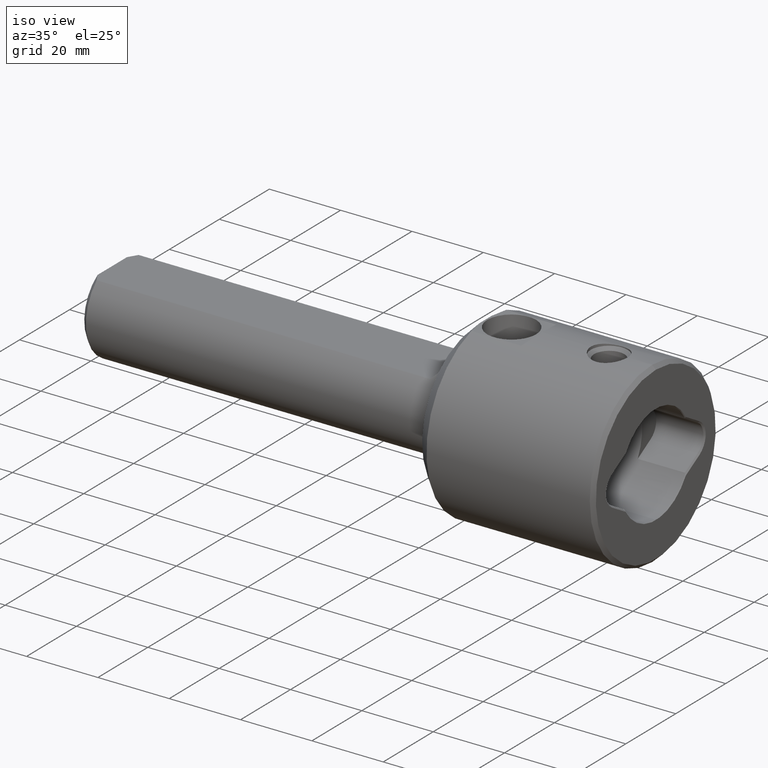
[diagram: clean part render]
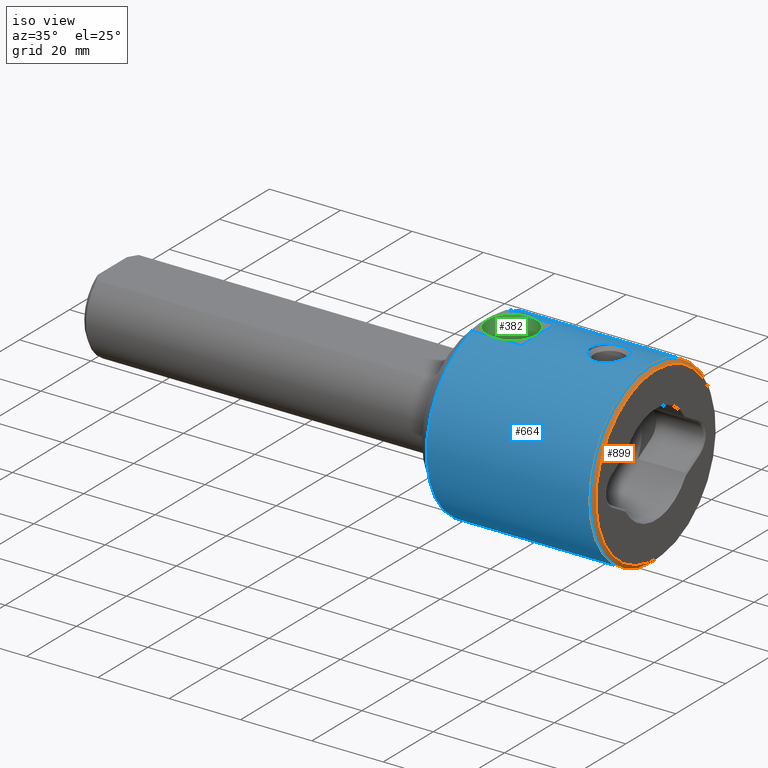
[diagram: same view with three faces highlighted in distinct colors, each labeled with its STEP entity id]
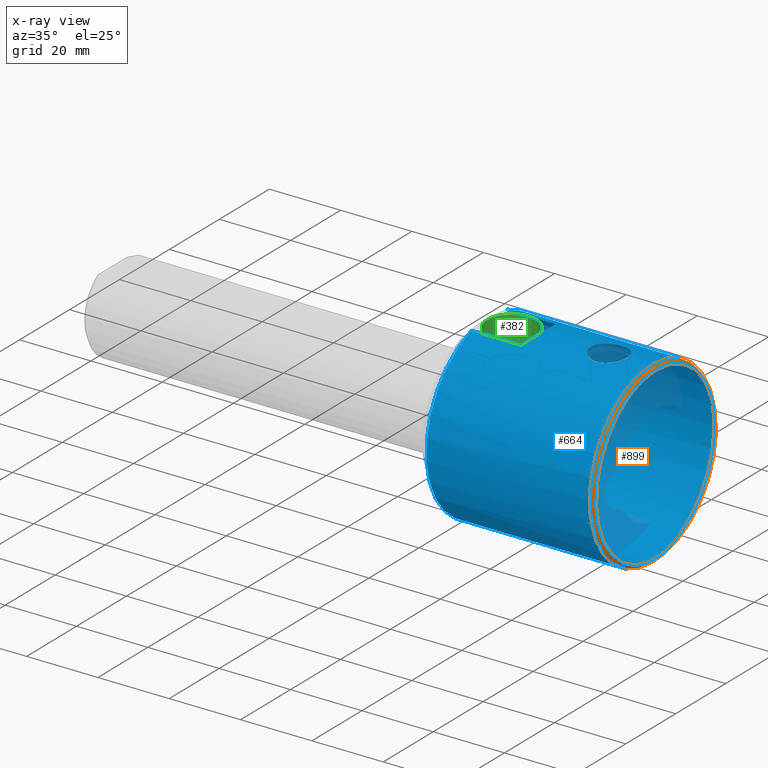
[diagram: x-ray of the same camera — body ghosted, the three highlighted faces saturated]
A machine part, iso view with three faces highlighted in distinct colors.
The next image is the same camera in x-ray (body ghosted, the three faces saturated) — at least one of them is partly hidden behind the body in this view.
Their STEP definitions:

[orange] entity #899 — the highlighted conical surface has half-angle 45 deg.
#67 = EDGE_CURVE ( 'NONE', #1527, #1527, #343, .T. ) ;
#141 = DIRECTION ( 'NONE',  ( -1.000000000000000000, -0.0000000000000000000, -0.0000000000000000000 ) ) ;
#146 = DIRECTION ( 'NONE',  ( 0.0000000000000000000, 0.0000000000000000000, 1.000000000000000000 ) ) ;
#159 = CONICAL_SURFACE ( 'NONE', #1102, 24.00000000000000355, 0.7853981633974466137 ) ;
#160 = ORIENTED_EDGE ( 'NONE', *, *, #715, .T. ) ;
#189 = DIRECTION ( 'NONE',  ( -1.000000000000000000, -0.0000000000000000000, -0.0000000000000000000 ) ) ;
#200 = ORIENTED_EDGE ( 'NONE', *, *, #67, .F. ) ;
#343 = CIRCLE ( 'NONE', #1292, 25.00000000000000000 ) ;
#385 = CARTESIAN_POINT ( 'NONE',  ( 151.4000000000000057, 0.0000000000000000000, 0.0000000000000000000 ) ) ;
#470 = CARTESIAN_POINT ( 'NONE',  ( 152.4000000000000057, 0.0000000000000000000, 24.00000000000000355 ) ) ;
#567 = AXIS2_PLACEMENT_3D ( 'NONE', #827, #189, #1437 ) ;
#698 = DIRECTION ( 'NONE',  ( 0.0000000000000000000, 0.0000000000000000000, 1.000000000000000000 ) ) ;
#715 = EDGE_CURVE ( 'NONE', #793, #793, #1566, .T. ) ;
#747 = CARTESIAN_POINT ( 'NONE',  ( 151.4000000000000057, 0.0000000000000000000, 25.00000000000000000 ) ) ;
#793 = VERTEX_POINT ( 'NONE', #470 ) ;
#827 = CARTESIAN_POINT ( 'NONE',  ( 152.4000000000000057, 0.0000000000000000000, 0.0000000000000000000 ) ) ;
#831 = DIRECTION ( 'NONE',  ( -1.000000000000000000, -0.0000000000000000000, -0.0000000000000000000 ) ) ;
#899 = ADVANCED_FACE ( 'NONE', ( #1134, #1409 ), #159, .T. ) ;
#948 = CARTESIAN_POINT ( 'NONE',  ( 152.4000000000000057, 0.0000000000000000000, 0.0000000000000000000 ) ) ;
#1102 = AXIS2_PLACEMENT_3D ( 'NONE', #948, #831, #698 ) ;
#1134 = FACE_OUTER_BOUND ( 'NONE', #1137, .T. ) ;
#1137 = EDGE_LOOP ( 'NONE', ( #200 ) ) ;
#1292 = AXIS2_PLACEMENT_3D ( 'NONE', #385, #141, #146 ) ;
#1409 = FACE_BOUND ( 'NONE', #1424, .T. ) ;
#1424 = EDGE_LOOP ( 'NONE', ( #160 ) ) ;
#1437 = DIRECTION ( 'NONE',  ( 0.0000000000000000000, 0.0000000000000000000, 1.000000000000000000 ) ) ;
#1527 = VERTEX_POINT ( 'NONE', #747 ) ;
#1566 = CIRCLE ( 'NONE', #567, 24.00000000000000355 ) ;

[blue] entity #664 — the highlighted cylindrical surface (bore or boss wall) has radius 25 mm, axis along (-1, -0, -0).
#32 = CARTESIAN_POINT ( 'NONE',  ( 138.1744209528919214, 5.016843694288756872, 24.49147632104921968 ) ) ;
#51 = CARTESIAN_POINT ( 'NONE',  ( 105.5999999999999943, 7.000000000000007994, 24.00000000000000000 ) ) ;
#67 = EDGE_CURVE ( 'NONE', #1527, #1527, #343, .T. ) ;
#74 = EDGE_LOOP ( 'NONE', ( #897 ) ) ;
#80 = EDGE_LOOP ( 'NONE', ( #512, #933, #1064, #987 ) ) ;
#94 = AXIS2_PLACEMENT_3D ( 'NONE', #467, #95, #729 ) ;
#95 = DIRECTION ( 'NONE',  ( -1.000000000000000000, -0.0000000000000000000, -0.0000000000000000000 ) ) ;
#104 = CARTESIAN_POINT ( 'NONE',  ( 138.0127342719502792, -4.984762648035729882, 24.49809519138390357 ) ) ;
#122 = CARTESIAN_POINT ( 'NONE',  ( 134.4635384986788722, 1.660615311776426184, 24.94672547838542442 ) ) ;
#126 = CARTESIAN_POINT ( 'NONE',  ( 136.6272881825333911, -4.374629887585953725, 24.61445787250782402 ) ) ;
#141 = DIRECTION ( 'NONE',  ( -1.000000000000000000, -0.0000000000000000000, -0.0000000000000000000 ) ) ;
#146 = DIRECTION ( 'NONE',  ( 0.0000000000000000000, 0.0000000000000000000, 1.000000000000000000 ) ) ;
#161 = CARTESIAN_POINT ( 'NONE',  ( 139.6864957112755690, 5.150232192239320383, 24.46375090665605967 ) ) ;
#166 = CARTESIAN_POINT ( 'NONE',  ( 105.5999999999999943, -7.000000000000007994, 24.00000000000000000 ) ) ;
#168 = CARTESIAN_POINT ( 'NONE',  ( 143.9755986521840327, 2.288858401140157817, 24.89694052744941288 ) ) ;
#173 = FACE_OUTER_BOUND ( 'NONE', #80, .T. ) ;
#196 = ORIENTED_EDGE ( 'NONE', *, *, #549, .T. ) ;
#210 = CARTESIAN_POINT ( 'NONE',  ( 119.6000000000000085, -6.999999999999978684, 24.00000000000000000 ) ) ;
#229 = VERTEX_POINT ( 'NONE', #166 ) ;
#237 = CARTESIAN_POINT ( 'NONE',  ( 134.2340093705505808, -0.6805027755556970481, 24.99293188818355915 ) ) ;
#245 = CARTESIAN_POINT ( 'NONE',  ( 143.4447980209166076, -3.141368923499277876, 24.80344721123005058 ) ) ;
#252 = CARTESIAN_POINT ( 'NONE',  ( 134.3649872841935178, 1.337132994925204654, 24.96645022003189851 ) ) ;
#256 = CARTESIAN_POINT ( 'NONE',  ( 134.4644251093467631, -1.663480737790255182, 24.94654809993545541 ) ) ;
#262 = CARTESIAN_POINT ( 'NONE',  ( 134.3666046089705617, -1.342465837486754854, 24.96612733024693043 ) ) ;
#290 = CARTESIAN_POINT ( 'NONE',  ( 141.0101986160071874, 4.886676901801127570, 24.51810806839961288 ) ) ;
#301 = CARTESIAN_POINT ( 'NONE',  ( 137.6885104576335834, 4.877543030927827594, 24.51962657363405285 ) ) ;
#324 = CARTESIAN_POINT ( 'NONE',  ( 144.4664201266909629, 0.6779353896317417139, 24.99301934527566971 ) ) ;
#338 = DIRECTION ( 'NONE',  ( -1.000000000000000000, -0.0000000000000000000, -0.0000000000000000000 ) ) ;
#343 = CIRCLE ( 'NONE', #1292, 25.00000000000000000 ) ;
#360 = CARTESIAN_POINT ( 'NONE',  ( 144.2285560805525506, -1.658570658355216665, 24.94545014816634065 ) ) ;
#364 = CARTESIAN_POINT ( 'NONE',  ( 139.0162214856229070, -5.150200937444081362, 24.46375748625921531 ) ) ;
#367 = CARTESIAN_POINT ( 'NONE',  ( 144.4664263691056760, -0.6765423343778538268, 24.99302262802729047 ) ) ;
#375 = CARTESIAN_POINT ( 'NONE',  ( 134.7279945250559479, 2.277730767257620581, 24.89647203327958636 ) ) ;
#383 = CARTESIAN_POINT ( 'NONE',  ( 140.0246961502668626, -5.116864292001710446, 24.47084565253971888 ) ) ;
#385 = CARTESIAN_POINT ( 'NONE',  ( 151.4000000000000057, 0.0000000000000000000, 0.0000000000000000000 ) ) ;
#394 = FACE_OUTER_BOUND ( 'NONE', #74, .T. ) ;
#406 = CARTESIAN_POINT ( 'NONE',  ( 137.0591079203534548, 4.624809591675354881, 24.56885580689529647 ) ) ;
#412 = CARTESIAN_POINT ( 'NONE',  ( 141.6323252803253467, 4.628915845203501966, 24.56807628802755872 ) ) ;
#415 = CARTESIAN_POINT ( 'NONE',  ( 136.7638604192682692, 4.466183996681688306, 24.59855760157341820 ) ) ;
#419 = CARTESIAN_POINT ( 'NONE',  ( 135.9424619829296148, 3.876064643825650080, 24.69886205431594561 ) ) ;
#421 = FACE_BOUND ( 'NONE', #1124, .T. ) ;
#422 = LINE ( 'NONE', #1646, #739 ) ;
#441 = CARTESIAN_POINT ( 'NONE',  ( 120.9424657534246563, 2.397260273972588340, 25.34246575342465846 ) ) ;
#449 = CARTESIAN_POINT ( 'NONE',  ( 144.3334608048710663, 1.342560878186653150, 24.96613992338827259 ) ) ;
#464 = VECTOR ( 'NONE', #601, 1000.000000000000000 ) ;
#467 = CARTESIAN_POINT ( 'NONE',  ( 105.5999999999999943, 0.0000000000000000000, 0.0000000000000000000 ) ) ;
#480 = CARTESIAN_POINT ( 'NONE',  ( 136.2095980725327706, -4.095431712443858174, 24.66299112297614471 ) ) ;
#486 = CARTESIAN_POINT ( 'NONE',  ( 137.2227942269150844, -4.693193566286652185, 24.55561598518108468 ) ) ;
#496 = CARTESIAN_POINT ( 'NONE',  ( 138.6739343181012032, -5.116548981337651902, 24.47091034646916441 ) ) ;
#505 = CARTESIAN_POINT ( 'NONE',  ( 134.8870634860073210, 2.575497957792742376, 24.86743226433703668 ) ) ;
#510 = CARTESIAN_POINT ( 'NONE',  ( 144.1708775198295882, -1.819369014141843710, 24.93419992063980217 ) ) ;
#512 = ORIENTED_EDGE ( 'NONE', *, *, #684, .T. ) ;
#541 = CARTESIAN_POINT ( 'NONE',  ( 143.2257240174852200, 3.407824214139198116, 24.76779898388390322 ) ) ;
#549 = EDGE_CURVE ( 'NONE', #596, #596, #1391, .T. ) ;
#559 = CARTESIAN_POINT ( 'NONE',  ( 136.2066099752144339, 4.093167059297906363, 24.66336998455036422 ) ) ;
#566 = CARTESIAN_POINT ( 'NONE',  ( 135.2557645773780450, 3.142195352914831208, 24.80335074766447789 ) ) ;
#581 = CARTESIAN_POINT ( 'NONE',  ( 0.0000000000000000000, 0.0000000000000000000, 0.0000000000000000000 ) ) ;
#589 = CARTESIAN_POINT ( 'NONE',  ( 144.5000000000000284, 0.3412118833759842929, 25.00000000000000355 ) ) ;
#596 = VERTEX_POINT ( 'NONE', #1385 ) ;
#601 = DIRECTION ( 'NONE',  ( -1.000000000000000000, -0.0000000000000000000, -0.0000000000000000000 ) ) ;
#625 = CARTESIAN_POINT ( 'NONE',  ( 134.8845193409183025, -2.587328020268099493, 24.86733362863869701 ) ) ;
#664 = ADVANCED_FACE ( 'NONE', ( #421, #173, #394 ), #1193, .T. ) ;
#670 = VERTEX_POINT ( 'NONE', #829 ) ;
#680 = CARTESIAN_POINT ( 'NONE',  ( 137.5278316914157415, 4.819838194913928398, 24.53107304276894496 ) ) ;
#683 = CARTESIAN_POINT ( 'NONE',  ( 140.6817400156114104, 4.986204483590475967, 24.49780054668596918 ) ) ;
#684 = EDGE_CURVE ( 'NONE', #670, #1565, #843, .T. ) ;
#691 = CARTESIAN_POINT ( 'NONE',  ( 143.8172520445753833, 2.584813143547311842, 24.86763431995795415 ) ) ;
#696 = CARTESIAN_POINT ( 'NONE',  ( 138.6684649431153673, 5.115744028187432235, 24.47107874998199861 ) ) ;
#716 = CARTESIAN_POINT ( 'NONE',  ( 144.2334372494009358, 1.669453893559327273, 24.94613084438351081 ) ) ;
#729 = DIRECTION ( 'NONE',  ( 0.0000000000000000000, 0.0000000000000000000, 1.000000000000000000 ) ) ;
#739 = VECTOR ( 'NONE', #880, 1000.000000000000000 ) ;
#742 = CARTESIAN_POINT ( 'NONE',  ( 119.6000000000000085, -6.999999999999978684, 24.00000000000000000 ) ) ;
#746 = CARTESIAN_POINT ( 'NONE',  ( 139.6899506655208540, -5.149797213262053752, 24.46384247629208275 ) ) ;
#747 = CARTESIAN_POINT ( 'NONE',  ( 151.4000000000000057, 0.0000000000000000000, 25.00000000000000000 ) ) ;
#752 = CARTESIAN_POINT ( 'NONE',  ( 141.1701887108301605, -4.820530262082675321, 24.53093507501965220 ) ) ;
#761 = CARTESIAN_POINT ( 'NONE',  ( 143.2279044454121220, -3.405368803448286297, 24.76813984972656613 ) ) ;
#768 = CARTESIAN_POINT ( 'NONE',  ( 143.8185091398973157, -2.582246233859878615, 24.86787479181763771 ) ) ;
#799 = CARTESIAN_POINT ( 'NONE',  ( 141.9280372858703458, 4.471004165685413589, 24.59768677513151403 ) ) ;
#802 = CARTESIAN_POINT ( 'NONE',  ( 138.0113590028683461, 4.975843023925099473, 24.49986733699327246 ) ) ;
#820 = DIRECTION ( 'NONE',  ( 0.0000000000000000000, 0.0000000000000000000, 1.000000000000000000 ) ) ;
#823 = CARTESIAN_POINT ( 'NONE',  ( 119.6000000000000085, 6.999999999999964473, 24.00000000000000000 ) ) ;
#829 = CARTESIAN_POINT ( 'NONE',  ( 119.6000000000000085, 6.999999999999964473, 24.00000000000000000 ) ) ;
#834 = VERTEX_POINT ( 'NONE', #51 ) ;
#835 = CARTESIAN_POINT ( 'NONE',  ( 120.9424657534246563, -2.397260273972594558, 25.34246575342466201 ) ) ;
#843 =( BOUNDED_CURVE ( )  B_SPLINE_CURVE ( 3, ( #823, #441, #835, #210 ),
 .UNSPECIFIED., .F., .F. ) 
 B_SPLINE_CURVE_WITH_KNOTS ( ( 4, 4 ),
 ( 2.857798544381466854, 3.425386762798119822 ),
 .UNSPECIFIED. ) 
 CURVE ( )  GEOMETRIC_REPRESENTATION_ITEM ( )  RATIONAL_B_SPLINE_CURVE ( ( 1.000000000000000000, 0.9733333333333336057, 0.9733333333333336057, 1.000000000000000000 ) ) 
 REPRESENTATION_ITEM ( '' )  );
#874 = CARTESIAN_POINT ( 'NONE',  ( 137.0685285066578842, -4.620154012658190368, 24.56950802095489550 ) ) ;
#880 = DIRECTION ( 'NONE',  ( 1.000000000000000000, 0.0000000000000000000, 0.0000000000000000000 ) ) ;
#881 = CARTESIAN_POINT ( 'NONE',  ( 134.7227872795446046, -2.285806775918765688, 24.89723915719483571 ) ) ;
#885 = CARTESIAN_POINT ( 'NONE',  ( 140.6893047517930029, -4.975664011461112146, 24.49990373007713274 ) ) ;
#897 = ORIENTED_EDGE ( 'NONE', *, *, #67, .T. ) ;
#923 = CARTESIAN_POINT ( 'NONE',  ( 142.4855922788964904, 4.088882842038800369, 24.66359171536486627 ) ) ;
#933 = ORIENTED_EDGE ( 'NONE', *, *, #1454, .T. ) ;
#964 = CARTESIAN_POINT ( 'NONE',  ( 144.5000000000000284, 4.878909776184769953E-16, 25.00000000000000000 ) ) ;
#987 = ORIENTED_EDGE ( 'NONE', *, *, #1281, .T. ) ;
#990 = CARTESIAN_POINT ( 'NONE',  ( 135.2574420655710981, -3.144161788846199013, 24.80308034757071667 ) ) ;
#995 = CARTESIAN_POINT ( 'NONE',  ( 144.5000000000000000, -0.3412118833760451331, 24.99999999999999645 ) ) ;
#999 = CARTESIAN_POINT ( 'NONE',  ( 134.2323992123003791, 0.6696555835691540004, 24.99326154456123561 ) ) ;
#1041 = CARTESIAN_POINT ( 'NONE',  ( 140.0214908923698545, 5.117115066404382517, 24.47079075499120648 ) ) ;
#1050 = CARTESIAN_POINT ( 'NONE',  ( 142.3486816777200090, 4.190324786926975520, 24.64650475045760558 ) ) ;
#1053 = EDGE_CURVE ( 'NONE', #834, #229, #1387, .T. ) ;
#1064 = ORIENTED_EDGE ( 'NONE', *, *, #1053, .F. ) ;
#1104 = CARTESIAN_POINT ( 'NONE',  ( 134.1998631952670848, 0.3344764782790655144, 25.00002818177275188 ) ) ;
#1107 = CARTESIAN_POINT ( 'NONE',  ( 137.6912676979657988, -4.887267964508350104, 24.51799300294277018 ) ) ;
#1124 = EDGE_LOOP ( 'NONE', ( #196 ) ) ;
#1127 = CARTESIAN_POINT ( 'NONE',  ( 142.7541653081704567, -3.878960960089100407, 24.69839974923915094 ) ) ;
#1162 = CARTESIAN_POINT ( 'NONE',  ( 135.4681204082834824, 3.400912127107900140, 24.76875977123064487 ) ) ;
#1167 = CARTESIAN_POINT ( 'NONE',  ( 142.8704925260616108, 3.762530133765146889, 24.71553459036740819 ) ) ;
#1178 = CARTESIAN_POINT ( 'NONE',  ( 134.9747455391757853, 2.721775566789074841, 24.85179747525151583 ) ) ;
#1193 = CYLINDRICAL_SURFACE ( 'NONE', #1435, 25.00000000000000000 ) ;
#1194 = LINE ( 'NONE', #1207, #464 ) ;
#1207 = CARTESIAN_POINT ( 'NONE',  ( 0.0000000000000000000, -7.000000000000007994, 24.00000000000000000 ) ) ;
#1236 = CARTESIAN_POINT ( 'NONE',  ( 140.5235790068870756, -5.017366449052781618, 24.49136951457012756 ) ) ;
#1244 = CARTESIAN_POINT ( 'NONE',  ( 144.3269578254819692, -1.334562423877939441, 24.96488099030679919 ) ) ;
#1251 = CARTESIAN_POINT ( 'NONE',  ( 134.6561885787938024, 2.125746138783853212, 24.90994564788033117 ) ) ;
#1264 = CARTESIAN_POINT ( 'NONE',  ( 144.5000000000000284, 4.878909776184769953E-16, 25.00000000000000000 ) ) ;
#1281 = EDGE_CURVE ( 'NONE', #834, #670, #422, .T. ) ;
#1292 = AXIS2_PLACEMENT_3D ( 'NONE', #385, #141, #146 ) ;
#1299 = CARTESIAN_POINT ( 'NONE',  ( 142.7462066004252108, 3.875136457290611069, 24.69807758987550628 ) ) ;
#1310 = CARTESIAN_POINT ( 'NONE',  ( 139.0064341163975428, 5.149765381190626989, 24.46384917742061305 ) ) ;
#1378 = CARTESIAN_POINT ( 'NONE',  ( 136.7711818031675932, -4.461012439267633134, 24.59890069716832528 ) ) ;
#1385 = CARTESIAN_POINT ( 'NONE',  ( 144.5000000000000000, 0.0000000000000000000, 25.00000000000000000 ) ) ;
#1387 = CIRCLE ( 'NONE', #94, 25.00000000000000000 ) ;
#1391 = B_SPLINE_CURVE_WITH_KNOTS ( 'NONE', 3,
 ( #1264, #995, #367, #1519, #1244, #360, #510, #1636, #768, #245, #761, #1127, #1631, #1655, #1641, #752, #1400, #885, #1236, #383, #746, #364, #496, #104, #1107, #486, #874, #1378, #126, #480, #1394, #1647, #990, #625, #881, #256, #262, #237, #1510, #1104, #999, #252, #122, #1251, #375, #505, #1178, #566, #1162, #419, #559, #415, #406, #680, #301, #802, #32, #696, #1310, #161, #1041, #683, #290, #412, #799, #1050, #923, #1299, #1167, #541, #1433, #691, #168, #716, #449, #324, #589, #964 ),
 .UNSPECIFIED., .T., .F.,
 ( 4, 2, 2, 2, 2, 2, 2, 2, 2, 2, 2, 2, 2, 2, 2, 2, 2, 2, 2, 2, 2, 2, 2, 2, 2, 2, 2, 2, 2, 2, 2, 2, 2, 2, 2, 2, 2, 2, 4 ),
 ( 0.0000000000000000000, 0.001008902792434687636, 0.001513354188652023431, 0.002017805584869359226, 0.003026708377304061174, 0.004035611169738763555, 0.005044513962173465503, 0.006053416754608167451, 0.006557868150825518425, 0.007062319547042869398, 0.008071222339477490682, 0.009080125131912114567, 0.01008902792434673498, 0.01059347932056404692, 0.01109793071678135887, 0.01210683350921598275, 0.01311573630165060490, 0.01412463909408522879, 0.01513354188651985094, 0.01614244467895447135, 0.01715134747138909871, 0.01816025026382372259, 0.01866470166004103454, 0.01916915305625834301, 0.02017805584869301547, 0.02118695864112768446, 0.02219586143356235691, 0.02270031282977965498, 0.02320476422599694957, 0.02421366701843146244, 0.02522256981086597183, 0.02623147260330048816, 0.02724037539573499755, 0.02774482679195225399, 0.02824927818816951042, 0.02925818098060401634, 0.03026708377303852920, 0.03127598656547303513, 0.03228488935790754105 ),
 .UNSPECIFIED. ) ;
#1394 = CARTESIAN_POINT ( 'NONE',  ( 135.9484401815503247, -3.881540451991749130, 24.69801800499246269 ) ) ;
#1400 = CARTESIAN_POINT ( 'NONE',  ( 141.0121180379955206, -4.877328490156728868, 24.51966928686236713 ) ) ;
#1433 = CARTESIAN_POINT ( 'NONE',  ( 143.4395614522516667, 3.148505509773678046, 24.80256859103770850 ) ) ;
#1435 = AXIS2_PLACEMENT_3D ( 'NONE', #581, #338, #820 ) ;
#1454 = EDGE_CURVE ( 'NONE', #1565, #229, #1194, .T. ) ;
#1510 = CARTESIAN_POINT ( 'NONE',  ( 134.2001376608951944, -0.3386761140919754554, 24.99997164185785437 ) ) ;
#1519 = CARTESIAN_POINT ( 'NONE',  ( 144.3678920484268531, -1.171117616000159289, 24.97309964608551525 ) ) ;
#1527 = VERTEX_POINT ( 'NONE', #747 ) ;
#1565 = VERTEX_POINT ( 'NONE', #742 ) ;
#1631 = CARTESIAN_POINT ( 'NONE',  ( 142.4955112310642562, -4.091799222261064628, 24.66361053216924049 ) ) ;
#1636 = CARTESIAN_POINT ( 'NONE',  ( 143.9767594455868220, -2.286799448125037326, 24.89715376207223585 ) ) ;
#1641 = CARTESIAN_POINT ( 'NONE',  ( 141.6346220444510493, -4.627677378206290548, 24.56830789316133590 ) ) ;
#1646 = CARTESIAN_POINT ( 'NONE',  ( 0.0000000000000000000, 7.000000000000007994, 24.00000000000000000 ) ) ;
#1647 = CARTESIAN_POINT ( 'NONE',  ( 135.4698734725816109, -3.403172580132197922, 24.76846515319866171 ) ) ;
#1655 = CARTESIAN_POINT ( 'NONE',  ( 141.9329229451170988, -4.468284999822102144, 24.59818965936700863 ) ) ;

[green] entity #382 — the highlighted conical surface has half-angle 1.715 deg.
#31 = FACE_OUTER_BOUND ( 'NONE', #1601, .T. ) ;
#53 = AXIS2_PLACEMENT_3D ( 'NONE', #1541, #659, #1309 ) ;
#77 = FACE_BOUND ( 'NONE', #1174, .T. ) ;
#205 = CARTESIAN_POINT ( 'NONE',  ( 112.0000000000000000, 0.0000000000000000000, 24.00000000000000000 ) ) ;
#285 = VERTEX_POINT ( 'NONE', #1094 ) ;
#359 = ORIENTED_EDGE ( 'NONE', *, *, #1331, .T. ) ;
#382 = ADVANCED_FACE ( 'NONE', ( #77, #31 ), #450, .F. ) ;
#445 = CIRCLE ( 'NONE', #1664, 6.557975081511277615 ) ;
#450 = CONICAL_SURFACE ( 'NONE', #872, 6.857987299999993347, 0.02993239667170206550 ) ;
#494 = DIRECTION ( 'NONE',  ( 1.000000000000000000, 0.0000000000000000000, 0.0000000000000000000 ) ) ;
#563 = DIRECTION ( 'NONE',  ( 1.000000000000000000, 0.0000000000000000000, 0.0000000000000000000 ) ) ;
#577 = CIRCLE ( 'NONE', #53, 6.857987299999993347 ) ;
#639 = DIRECTION ( 'NONE',  ( -0.0000000000000000000, -0.0000000000000000000, 1.000000000000000000 ) ) ;
#659 = DIRECTION ( 'NONE',  ( -0.0000000000000000000, -0.0000000000000000000, 1.000000000000000000 ) ) ;
#872 = AXIS2_PLACEMENT_3D ( 'NONE', #205, #1594, #563 ) ;
#1094 = CARTESIAN_POINT ( 'NONE',  ( 118.8579872999999907, 0.0000000000000000000, 24.00000000000000000 ) ) ;
#1149 = EDGE_CURVE ( 'NONE', #1214, #1214, #445, .T. ) ;
#1174 = EDGE_LOOP ( 'NONE', ( #1412 ) ) ;
#1214 = VERTEX_POINT ( 'NONE', #1226 ) ;
#1226 = CARTESIAN_POINT ( 'NONE',  ( 118.5579750815112732, 0.0000000000000000000, 13.97999999999999865 ) ) ;
#1309 = DIRECTION ( 'NONE',  ( 1.000000000000000000, 0.0000000000000000000, 0.0000000000000000000 ) ) ;
#1331 = EDGE_CURVE ( 'NONE', #285, #285, #577, .T. ) ;
#1412 = ORIENTED_EDGE ( 'NONE', *, *, #1149, .F. ) ;
#1541 = CARTESIAN_POINT ( 'NONE',  ( 112.0000000000000000, 0.0000000000000000000, 24.00000000000000000 ) ) ;
#1594 = DIRECTION ( 'NONE',  ( -0.0000000000000000000, -0.0000000000000000000, 1.000000000000000000 ) ) ;
#1601 = EDGE_LOOP ( 'NONE', ( #359 ) ) ;
#1640 = CARTESIAN_POINT ( 'NONE',  ( 112.0000000000000000, 0.0000000000000000000, 13.97999999999999865 ) ) ;
#1664 = AXIS2_PLACEMENT_3D ( 'NONE', #1640, #639, #494 ) ;